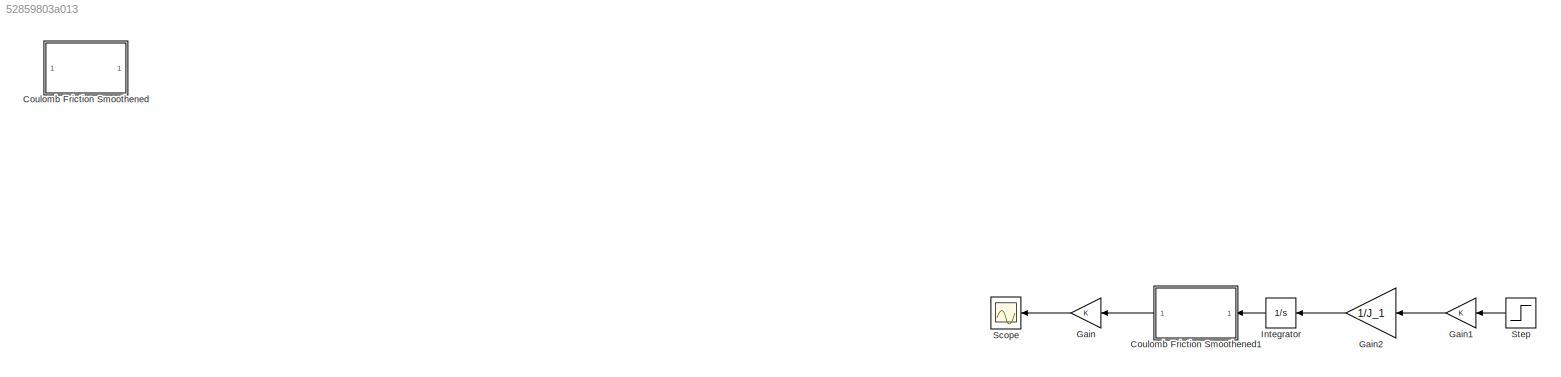
MODEL slx_52859803a013
KIND model
CONFIG AbsTol = auto
CONFIG EnableMultiTasking = off
CONFIG FixedStep = auto
CONFIG MaxStep = auto
CONFIG MinStep = auto
CONFIG RelTol = 1e-8
CONFIG SampleTimeConstraint = Unconstrained
CONFIG Solver = VariableStepAuto
CONFIG SolverName = VariableStepAuto
CONFIG StartTime = 0.0
CONFIG StopTime = 100
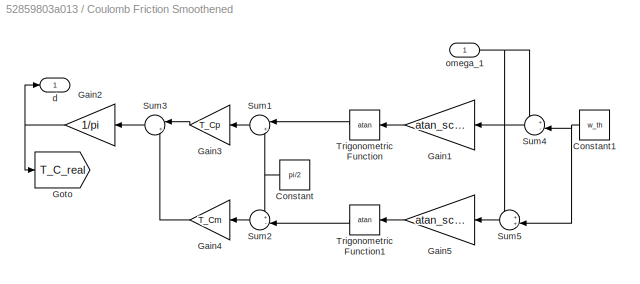
BLOCK [SubSystem] Coulomb Friction Smoothened
  Ports = [1, 1]
  RequestExecContextInheritance = off
BLOCK [Constant] Coulomb Friction Smoothened/Constant
  Value = pi/2
BLOCK [Constant] Coulomb Friction Smoothened/Constant1
  Value = w_th
BLOCK [Gain] Coulomb Friction Smoothened/Gain1
  Gain = atan_scale
BLOCK [Gain] Coulomb Friction Smoothened/Gain2
  Gain = 1/pi
BLOCK [Gain] Coulomb Friction Smoothened/Gain3
  Gain = T_Cp
BLOCK [Gain] Coulomb Friction Smoothened/Gain4
  Gain = T_Cm
BLOCK [Gain] Coulomb Friction Smoothened/Gain5
  Gain = atan_scale
BLOCK [Goto] Coulomb Friction Smoothened/Goto
  GotoTag = T_C_real
  TagVisibility = global
BLOCK [Sum] Coulomb Friction Smoothened/Sum1
  Inputs = |++
  Ports = [2, 1]
BLOCK [Sum] Coulomb Friction Smoothened/Sum2
  Inputs = +-|
  Ports = [2, 1]
BLOCK [Sum] Coulomb Friction Smoothened/Sum3
  Inputs = |+-
  Ports = [2, 1]
BLOCK [Sum] Coulomb Friction Smoothened/Sum4
  Inputs = +-|
  Ports = [2, 1]
BLOCK [Sum] Coulomb Friction Smoothened/Sum5
  Inputs = ++|
  Ports = [2, 1]
BLOCK [Trigonometry] Coulomb Friction Smoothened/Trigonometric Function
  Operator = atan
  Ports = [1, 1]
BLOCK [Trigonometry] Coulomb Friction Smoothened/Trigonometric Function1
  Operator = atan
  Ports = [1, 1]
BLOCK [Outport] Coulomb Friction Smoothened/d
  VectorParamsAs1DForOutWhenUnconnected = off
BLOCK [Inport] Coulomb Friction Smoothened/omega_1
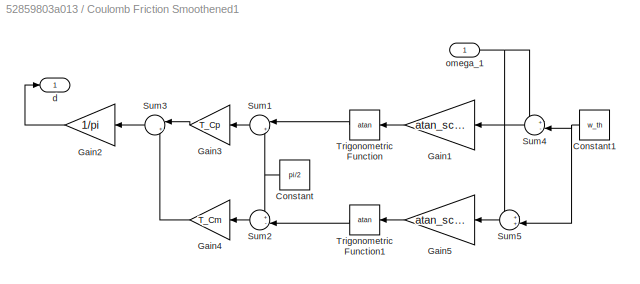
BLOCK [SubSystem] Coulomb Friction Smoothened1
  Ports = [1, 1]
  RequestExecContextInheritance = off
BLOCK [Constant] Coulomb Friction Smoothened1/Constant
  Value = pi/2
BLOCK [Constant] Coulomb Friction Smoothened1/Constant1
  Value = w_th
BLOCK [Gain] Coulomb Friction Smoothened1/Gain1
  Gain = atan_scale
BLOCK [Gain] Coulomb Friction Smoothened1/Gain2
  Gain = 1/pi
BLOCK [Gain] Coulomb Friction Smoothened1/Gain3
  Gain = T_Cp
BLOCK [Gain] Coulomb Friction Smoothened1/Gain4
  Gain = T_Cm
BLOCK [Gain] Coulomb Friction Smoothened1/Gain5
  Gain = atan_scale
BLOCK [Sum] Coulomb Friction Smoothened1/Sum1
  Inputs = |++
  Ports = [2, 1]
BLOCK [Sum] Coulomb Friction Smoothened1/Sum2
  Inputs = +-|
  Ports = [2, 1]
BLOCK [Sum] Coulomb Friction Smoothened1/Sum3
  Inputs = |+-
  Ports = [2, 1]
BLOCK [Sum] Coulomb Friction Smoothened1/Sum4
  Inputs = +-|
  Ports = [2, 1]
BLOCK [Sum] Coulomb Friction Smoothened1/Sum5
  Inputs = ++|
  Ports = [2, 1]
BLOCK [Trigonometry] Coulomb Friction Smoothened1/Trigonometric Function
  Operator = atan
  Ports = [1, 1]
BLOCK [Trigonometry] Coulomb Friction Smoothened1/Trigonometric Function1
  Operator = atan
  Ports = [1, 1]
BLOCK [Outport] Coulomb Friction Smoothened1/d
  VectorParamsAs1DForOutWhenUnconnected = off
BLOCK [Inport] Coulomb Friction Smoothened1/omega_1
BLOCK [Gain] Gain
  NameLocation = top
BLOCK [Gain] Gain1
  NameLocation = top
BLOCK [Gain] Gain2
  Gain = 1/J_1
  NameLocation = top
BLOCK [Integrator] Integrator
  InitialCondition = x_0(2)
  NameLocation = top
  Ports = [1, 1]
BLOCK [Scope] Scope
  Floating = off
  NameLocation = top
  NumInputPorts = 1
  Ports = [1]
  ScopeSpecificationString = Simulink.scopes.TimeScopeBlockCfg('CurrentConfiguration', extmgr.ConfigurationSet(extmgr.Configuration('Core','General UI',true),extmgr.Configuration('Core','Source UI',true),extmgr.Configuration('Sources','WiredSimulink',true),extmgr.Configuration('Visuals','Time Domain',true),extmgr.Configuration('Tools','Plot Navigation',true),extmgr.Configuration('Tools','Measurements',true)),'Version','2020a'...<+1ch>
BLOCK [Step] Step
  NameLocation = top
  SampleTime = 0
NET Coulomb Friction Smoothened/Constant1:1 -> Coulomb Friction Smoothened/Sum4:2, Coulomb Friction Smoothened/Sum5:2
NET Coulomb Friction Smoothened/Constant:1 -> Coulomb Friction Smoothened/Sum1:2, Coulomb Friction Smoothened/Sum2:1
LINE Coulomb Friction Smoothened/Gain1:1 -> Coulomb Friction Smoothened/Trigonometric Function:1
NET Coulomb Friction Smoothened/Gain2:1 -> Coulomb Friction Smoothened/Goto:1, Coulomb Friction Smoothened/d:1
LINE Coulomb Friction Smoothened/Gain3:1 -> Coulomb Friction Smoothened/Sum3:1
LINE Coulomb Friction Smoothened/Gain4:1 -> Coulomb Friction Smoothened/Sum3:2
LINE Coulomb Friction Smoothened/Gain5:1 -> Coulomb Friction Smoothened/Trigonometric Function1:1
LINE Coulomb Friction Smoothened/Sum1:1 -> Coulomb Friction Smoothened/Gain3:1
LINE Coulomb Friction Smoothened/Sum2:1 -> Coulomb Friction Smoothened/Gain4:1
LINE Coulomb Friction Smoothened/Sum3:1 -> Coulomb Friction Smoothened/Gain2:1
LINE Coulomb Friction Smoothened/Sum4:1 -> Coulomb Friction Smoothened/Gain1:1
LINE Coulomb Friction Smoothened/Sum5:1 -> Coulomb Friction Smoothened/Gain5:1
LINE Coulomb Friction Smoothened/Trigonometric Function1:1 -> Coulomb Friction Smoothened/Sum2:2
LINE Coulomb Friction Smoothened/Trigonometric Function:1 -> Coulomb Friction Smoothened/Sum1:1
NET Coulomb Friction Smoothened/omega_1:1 -> Coulomb Friction Smoothened/Sum4:1, Coulomb Friction Smoothened/Sum5:1
NET Coulomb Friction Smoothened1/Constant1:1 -> Coulomb Friction Smoothened1/Sum4:2, Coulomb Friction Smoothened1/Sum5:2
NET Coulomb Friction Smoothened1/Constant:1 -> Coulomb Friction Smoothened1/Sum1:2, Coulomb Friction Smoothened1/Sum2:1
LINE Coulomb Friction Smoothened1/Gain1:1 -> Coulomb Friction Smoothened1/Trigonometric Function:1
LINE Coulomb Friction Smoothened1/Gain2:1 -> Coulomb Friction Smoothened1/d:1
LINE Coulomb Friction Smoothened1/Gain3:1 -> Coulomb Friction Smoothened1/Sum3:1
LINE Coulomb Friction Smoothened1/Gain4:1 -> Coulomb Friction Smoothened1/Sum3:2
LINE Coulomb Friction Smoothened1/Gain5:1 -> Coulomb Friction Smoothened1/Trigonometric Function1:1
LINE Coulomb Friction Smoothened1/Sum1:1 -> Coulomb Friction Smoothened1/Gain3:1
LINE Coulomb Friction Smoothened1/Sum2:1 -> Coulomb Friction Smoothened1/Gain4:1
LINE Coulomb Friction Smoothened1/Sum3:1 -> Coulomb Friction Smoothened1/Gain2:1
LINE Coulomb Friction Smoothened1/Sum4:1 -> Coulomb Friction Smoothened1/Gain1:1
LINE Coulomb Friction Smoothened1/Sum5:1 -> Coulomb Friction Smoothened1/Gain5:1
LINE Coulomb Friction Smoothened1/Trigonometric Function1:1 -> Coulomb Friction Smoothened1/Sum2:2
LINE Coulomb Friction Smoothened1/Trigonometric Function:1 -> Coulomb Friction Smoothened1/Sum1:1
NET Coulomb Friction Smoothened1/omega_1:1 -> Coulomb Friction Smoothened1/Sum4:1, Coulomb Friction Smoothened1/Sum5:1
LINE Coulomb Friction Smoothened1:1 -> Gain:1
LINE Gain1:1 -> Gain2:1
LINE Gain2:1 -> Integrator:1
LINE Gain:1 -> Scope:1
LINE Integrator:1 -> Coulomb Friction Smoothened1:1
LINE Step:1 -> Gain1:1
note: NET lines group one-source signal fan-out (src -> all destinations, sorted); 1:1 wires keep LINE
